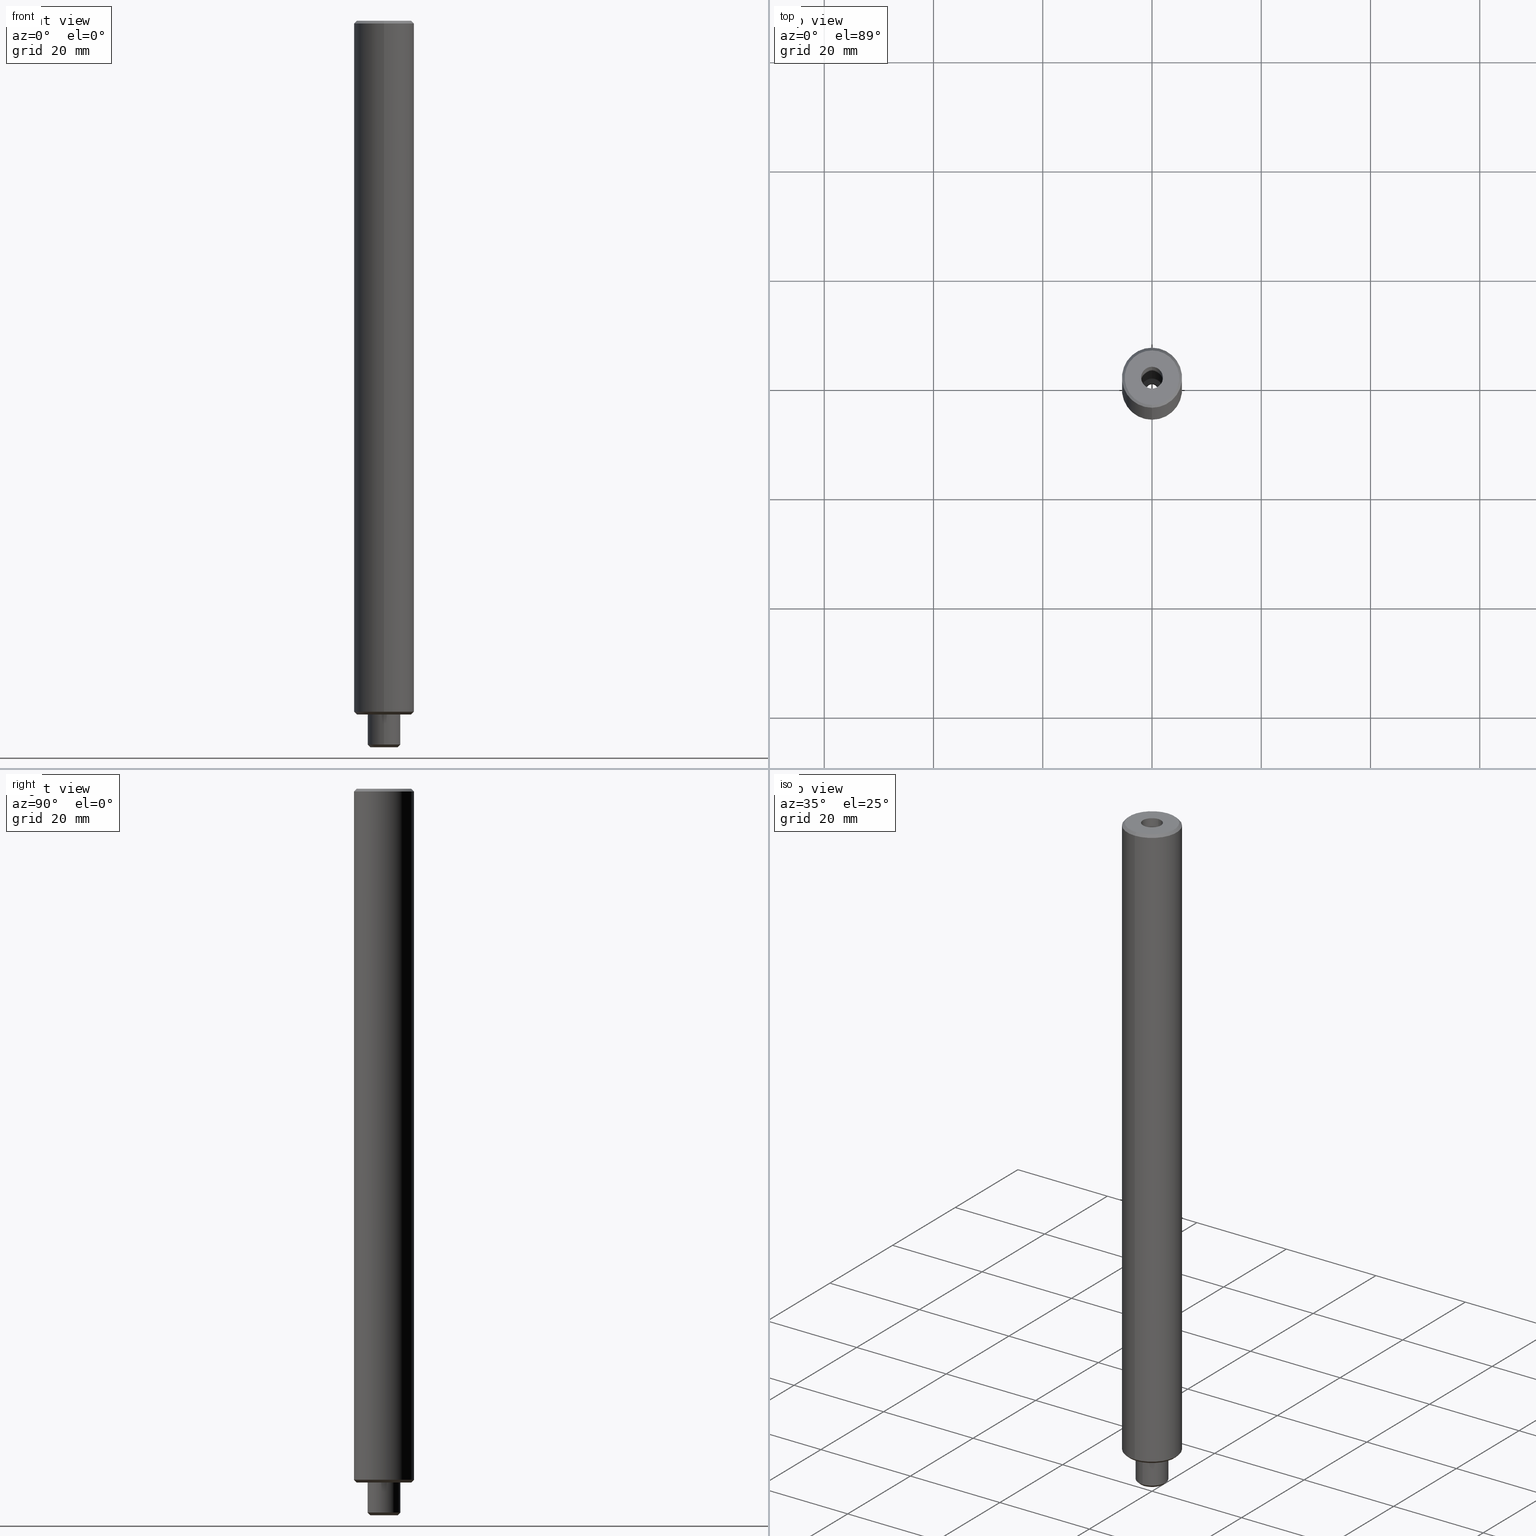
[diagram: canonical four-view strip — front | top / right | iso, engineering-drawing reading convention]
A machine part, canonical four-view strip (front | top / right | iso — engineering-drawing reading convention). The complete STEP part file that produces these views, byte-faithful:
ISO-10303-21;
HEADER;
FILE_DESCRIPTION(('no description'),'unknown implementation level');
FILE_NAME('29026E69-09CB-4364-9A47-0C9B39A260C6_export.stp','  ',('CIMSOURCE GmbH'),('CADClick - KiM GmbH - www.kimweb.de'),'unknown preprocess','ACIS','unknown authorization');
FILE_SCHEMA(('automotive_design'));
ENDSEC;
DATA;
#1=MECHANICAL_DESIGN_GEOMETRIC_PRESENTATION_REPRESENTATION(' ',(#10,#11,#12,#13,#14,#15,#16,#17,#18,#19,#20,#21,#22,#23,#24,#25,#26,#27,#28,#29,#30,#31,#32,#33,#34,#35,#36,#37,#38,#39,#40,#41,#42,#43,#44,#45,#46,#47,#48,#49,#50,#51,#52,#53,#54,#55,#56,#57,#58,#59,#60,#61,#62,#63,#64,#65,#66,#67,#68,#69,#70,#71,#72,#73,#74,#75,#76,#77,#78,#79,#80,#81,#82,#83,#84,#85,#86,#87,#88,#89),#6);
#2=PRODUCT_DEFINITION_CONTEXT('',#90,'design');
#3=APPLICATION_PROTOCOL_DEFINITION('INTERNATIONAL STANDARD','automotive_design',1994,#90);
#4=PRODUCT_CATEGORY_RELATIONSHIP('NONE','NONE',#91,#92);
#5=SHAPE_DEFINITION_REPRESENTATION(#93,#94);
#6= (GEOMETRIC_REPRESENTATION_CONTEXT(3)GLOBAL_UNCERTAINTY_ASSIGNED_CONTEXT((#97))GLOBAL_UNIT_ASSIGNED_CONTEXT((#99,#100,#101))REPRESENTATION_CONTEXT('NONE','WORKSPACE'));
#10=STYLED_ITEM('',(#103),#104);
#11=STYLED_ITEM('',(#105),#106);
#12=STYLED_ITEM('',(#107),#108);
#13=STYLED_ITEM('',(#109),#110);
#14=STYLED_ITEM('',(#111),#112);
#15=STYLED_ITEM('',(#113),#114);
#16=STYLED_ITEM('',(#115),#116);
#17=STYLED_ITEM('',(#117),#118);
#18=STYLED_ITEM('',(#119),#120);
#19=STYLED_ITEM('',(#121),#122);
#20=STYLED_ITEM('',(#123),#124);
#21=STYLED_ITEM('',(#125),#126);
#22=STYLED_ITEM('',(#127),#128);
#23=STYLED_ITEM('',(#129),#130);
#24=STYLED_ITEM('',(#131),#132);
#25=STYLED_ITEM('',(#133),#134);
#26=STYLED_ITEM('',(#135),#136);
#27=STYLED_ITEM('',(#137),#138);
#28=STYLED_ITEM('',(#139),#140);
#29=STYLED_ITEM('',(#141),#142);
#30=STYLED_ITEM('',(#143),#144);
#31=STYLED_ITEM('',(#145),#146);
#32=STYLED_ITEM('',(#147),#148);
#33=STYLED_ITEM('',(#149),#150);
#34=STYLED_ITEM('',(#151),#152);
#35=STYLED_ITEM('',(#153),#154);
#36=STYLED_ITEM('',(#155),#156);
#37=STYLED_ITEM('',(#157),#158);
#38=STYLED_ITEM('',(#159),#160);
#39=STYLED_ITEM('',(#161),#162);
#40=STYLED_ITEM('',(#163),#164);
#41=STYLED_ITEM('',(#165),#166);
#42=STYLED_ITEM('',(#167),#168);
#43=STYLED_ITEM('',(#169),#170);
#44=STYLED_ITEM('',(#171),#172);
#45=STYLED_ITEM('',(#173),#174);
#46=STYLED_ITEM('',(#175),#176);
#47=STYLED_ITEM('',(#177),#178);
#48=STYLED_ITEM('',(#179),#180);
#49=STYLED_ITEM('',(#181),#182);
#50=STYLED_ITEM('',(#183),#184);
#51=STYLED_ITEM('',(#185),#186);
#52=STYLED_ITEM('',(#187),#188);
#53=STYLED_ITEM('',(#189),#190);
#54=STYLED_ITEM('',(#191),#192);
#55=STYLED_ITEM('',(#193),#194);
#56=STYLED_ITEM('',(#195),#196);
#57=STYLED_ITEM('',(#197),#198);
#58=STYLED_ITEM('',(#199),#200);
#59=STYLED_ITEM('',(#201),#202);
#60=STYLED_ITEM('',(#203),#204);
#61=STYLED_ITEM('',(#205),#206);
#62=STYLED_ITEM('',(#207),#208);
#63=STYLED_ITEM('',(#209),#210);
#64=STYLED_ITEM('',(#211),#212);
#65=STYLED_ITEM('',(#213),#214);
#66=STYLED_ITEM('',(#215),#216);
#67=STYLED_ITEM('',(#217),#218);
#68=STYLED_ITEM('',(#219),#220);
#69=STYLED_ITEM('',(#221),#222);
#70=STYLED_ITEM('',(#223),#224);
#71=STYLED_ITEM('',(#225),#226);
#72=STYLED_ITEM('',(#227),#228);
#73=STYLED_ITEM('',(#229),#230);
#74=STYLED_ITEM('',(#231),#232);
#75=STYLED_ITEM('',(#233),#234);
#76=STYLED_ITEM('',(#235),#236);
#77=STYLED_ITEM('',(#237),#238);
#78=STYLED_ITEM('',(#239),#240);
#79=STYLED_ITEM('',(#241),#242);
#80=STYLED_ITEM('',(#243),#244);
#81=STYLED_ITEM('',(#245),#246);
#82=STYLED_ITEM('',(#247),#248);
#83=STYLED_ITEM('',(#249),#250);
#84=STYLED_ITEM('',(#251),#252);
#85=STYLED_ITEM('',(#253),#254);
#86=STYLED_ITEM('',(#255),#256);
#87=STYLED_ITEM('',(#257),#258);
#88=STYLED_ITEM('',(#259),#260);
#89=STYLED_ITEM('',(#261),#262);
#90=APPLICATION_CONTEXT(' ');
#91=PRODUCT_CATEGORY('part','NONE');
#92=PRODUCT_RELATED_PRODUCT_CATEGORY('detail',' ',(#263));
#93=PRODUCT_DEFINITION_SHAPE('NONE','NONE',#264);
#94=ADVANCED_BREP_SHAPE_REPRESENTATION('NONE',(#236,#265),#6);
#97=UNCERTAINTY_MEASURE_WITH_UNIT(LENGTH_MEASURE(1.0E-006),#99,'','');
#99= (CONVERSION_BASED_UNIT('MILLIMETRE',#268)LENGTH_UNIT()NAMED_UNIT(#271));
#100= (NAMED_UNIT(#273)PLANE_ANGLE_UNIT()SI_UNIT($,.RADIAN.));
#101= (NAMED_UNIT(#273)SOLID_ANGLE_UNIT()SI_UNIT($,.STERADIAN.));
#103=PRESENTATION_STYLE_ASSIGNMENT((#279));
#104=VERTEX_POINT('NONE',#280);
#105=PRESENTATION_STYLE_ASSIGNMENT((#281));
#106=EDGE_CURVE('NONE',#208,#130,#282,.T.);
#107=PRESENTATION_STYLE_ASSIGNMENT((#283));
#108=EDGE_CURVE('NONE',#132,#222,#284,.T.);
#109=PRESENTATION_STYLE_ASSIGNMENT((#285));
#110=ADVANCED_FACE('NONE',(#286),#287,.F.);
#111=PRESENTATION_STYLE_ASSIGNMENT((#288));
#112=VERTEX_POINT('NONE',#289);
#113=PRESENTATION_STYLE_ASSIGNMENT((#290));
#114=EDGE_CURVE('NONE',#246,#134,#291,.T.);
#115=PRESENTATION_STYLE_ASSIGNMENT((#292));
#116=EDGE_CURVE('NONE',#208,#168,#293,.T.);
#117=PRESENTATION_STYLE_ASSIGNMENT((#294));
#118=ADVANCED_FACE('NONE',(#295),#296,.T.);
#119=PRESENTATION_STYLE_ASSIGNMENT((#297));
#120=ADVANCED_FACE('NONE',(#298,#299),#300,.F.);
#121=PRESENTATION_STYLE_ASSIGNMENT((#301));
#122=ADVANCED_FACE('NONE',(#302),#303,.T.);
#123=PRESENTATION_STYLE_ASSIGNMENT((#304));
#124=EDGE_CURVE('NONE',#200,#168,#305,.T.);
#125=PRESENTATION_STYLE_ASSIGNMENT((#306));
#126=VERTEX_POINT('NONE',#307);
#127=PRESENTATION_STYLE_ASSIGNMENT((#308));
#128=VERTEX_POINT('NONE',#309);
#129=PRESENTATION_STYLE_ASSIGNMENT((#310));
#130=VERTEX_POINT('NONE',#311);
#131=PRESENTATION_STYLE_ASSIGNMENT((#312));
#132=VERTEX_POINT('NONE',#313);
#133=PRESENTATION_STYLE_ASSIGNMENT((#314));
#134=VERTEX_POINT('NONE',#315);
#135=PRESENTATION_STYLE_ASSIGNMENT((#316));
#136=ADVANCED_FACE('NONE',(#317),#318,.F.);
#137=PRESENTATION_STYLE_ASSIGNMENT((#319));
#138=EDGE_CURVE('NONE',#104,#242,#320,.T.);
#139=PRESENTATION_STYLE_ASSIGNMENT((#321));
#140=ADVANCED_FACE('NONE',(#322),#323,.T.);
#141=PRESENTATION_STYLE_ASSIGNMENT((#324));
#142=VERTEX_POINT('NONE',#325);
#143=PRESENTATION_STYLE_ASSIGNMENT((#326));
#144=ADVANCED_FACE('NONE',(#327),#328,.T.);
#145=PRESENTATION_STYLE_ASSIGNMENT((#329));
#146=VERTEX_POINT('NONE',#330);
#147=PRESENTATION_STYLE_ASSIGNMENT((#331));
#148=EDGE_CURVE('NONE',#200,#210,#332,.T.);
#149=PRESENTATION_STYLE_ASSIGNMENT((#333));
#150=EDGE_CURVE('NONE',#104,#134,#334,.T.);
#151=PRESENTATION_STYLE_ASSIGNMENT((#335));
#152=EDGE_CURVE('NONE',#246,#220,#336,.T.);
#153=PRESENTATION_STYLE_ASSIGNMENT((#337));
#154=VERTEX_POINT('NONE',#338);
#155=PRESENTATION_STYLE_ASSIGNMENT((#339));
#156=ADVANCED_FACE('NONE',(#340),#341,.T.);
#157=PRESENTATION_STYLE_ASSIGNMENT((#342));
#158=EDGE_CURVE('NONE',#112,#142,#343,.T.);
#159=PRESENTATION_STYLE_ASSIGNMENT((#344));
#160=EDGE_CURVE('NONE',#226,#154,#345,.T.);
#161=PRESENTATION_STYLE_ASSIGNMENT((#346));
#162=EDGE_CURVE('NONE',#134,#246,#347,.T.);
#163=PRESENTATION_STYLE_ASSIGNMENT((#348));
#164=ADVANCED_FACE('NONE',(#349),#350,.T.);
#165=PRESENTATION_STYLE_ASSIGNMENT((#351));
#166=ADVANCED_FACE('NONE',(#352,#353),#354,.F.);
#167=PRESENTATION_STYLE_ASSIGNMENT((#355));
#168=VERTEX_POINT('NONE',#356);
#169=PRESENTATION_STYLE_ASSIGNMENT((#357));
#170=EDGE_CURVE('NONE',#134,#146,#358,.T.);
#171=PRESENTATION_STYLE_ASSIGNMENT((#359));
#172=ADVANCED_FACE('NONE',(#360),#361,.F.);
#173=PRESENTATION_STYLE_ASSIGNMENT((#362));
#174=ADVANCED_FACE('NONE',(#363),#364,.T.);
#175=PRESENTATION_STYLE_ASSIGNMENT((#365));
#176=EDGE_CURVE('NONE',#132,#154,#366,.T.);
#177=PRESENTATION_STYLE_ASSIGNMENT((#367));
#178=EDGE_CURVE('NONE',#222,#132,#368,.T.);
#179=PRESENTATION_STYLE_ASSIGNMENT((#369));
#180=ADVANCED_FACE('NONE',(#370),#371,.F.);
#181=PRESENTATION_STYLE_ASSIGNMENT((#372));
#182=EDGE_CURVE('NONE',#112,#222,#373,.T.);
#183=PRESENTATION_STYLE_ASSIGNMENT((#374));
#184=ADVANCED_FACE('NONE',(#375),#376,.F.);
#185=PRESENTATION_STYLE_ASSIGNMENT((#377));
#186=EDGE_CURVE('NONE',#262,#130,#378,.T.);
#187=PRESENTATION_STYLE_ASSIGNMENT((#379));
#188=ADVANCED_FACE('NONE',(#380),#381,.T.);
#189=PRESENTATION_STYLE_ASSIGNMENT((#382));
#190=VERTEX_POINT('NONE',#383);
#191=PRESENTATION_STYLE_ASSIGNMENT((#384));
#192=EDGE_CURVE('NONE',#142,#112,#385,.T.);
#193=PRESENTATION_STYLE_ASSIGNMENT((#386));
#194=EDGE_CURVE('NONE',#128,#126,#387,.T.);
#195=PRESENTATION_STYLE_ASSIGNMENT((#388));
#196=EDGE_CURVE('NONE',#168,#208,#389,.T.);
#197=PRESENTATION_STYLE_ASSIGNMENT((#390));
#198=VERTEX_POINT('NONE',#391);
#199=PRESENTATION_STYLE_ASSIGNMENT((#392));
#200=VERTEX_POINT('NONE',#393);
#201=PRESENTATION_STYLE_ASSIGNMENT((#394));
#202=EDGE_CURVE('NONE',#142,#132,#395,.T.);
#203=PRESENTATION_STYLE_ASSIGNMENT((#396));
#204=ADVANCED_FACE('NONE',(#397),#398,.T.);
#205=PRESENTATION_STYLE_ASSIGNMENT((#399));
#206=EDGE_CURVE('NONE',#154,#190,#400,.T.);
#207=PRESENTATION_STYLE_ASSIGNMENT((#401));
#208=VERTEX_POINT('NONE',#402);
#209=PRESENTATION_STYLE_ASSIGNMENT((#403));
#210=VERTEX_POINT('NONE',#404);
#211=PRESENTATION_STYLE_ASSIGNMENT((#405));
#212=ADVANCED_FACE('NONE',(#406),#407,.T.);
#213=PRESENTATION_STYLE_ASSIGNMENT((#408));
#214=EDGE_CURVE('NONE',#190,#198,#409,.T.);
#215=PRESENTATION_STYLE_ASSIGNMENT((#410));
#216=EDGE_CURVE('NONE',#210,#200,#411,.T.);
#217=PRESENTATION_STYLE_ASSIGNMENT((#412));
#218=EDGE_CURVE('NONE',#210,#208,#413,.T.);
#219=PRESENTATION_STYLE_ASSIGNMENT((#414));
#220=VERTEX_POINT('NONE',#415);
#221=PRESENTATION_STYLE_ASSIGNMENT((#416));
#222=VERTEX_POINT('NONE',#417);
#223=PRESENTATION_STYLE_ASSIGNMENT((#418));
#224=EDGE_CURVE('NONE',#130,#262,#419,.T.);
#225=PRESENTATION_STYLE_ASSIGNMENT((#420));
#226=VERTEX_POINT('NONE',#421);
#227=PRESENTATION_STYLE_ASSIGNMENT((#422));
#228=EDGE_CURVE('NONE',#198,#190,#423,.T.);
#229=PRESENTATION_STYLE_ASSIGNMENT((#424));
#230=EDGE_CURVE('NONE',#220,#146,#425,.T.);
#231=PRESENTATION_STYLE_ASSIGNMENT((#426));
#232=EDGE_CURVE('NONE',#126,#128,#427,.T.);
#233=PRESENTATION_STYLE_ASSIGNMENT((#428));
#234=EDGE_CURVE('NONE',#242,#104,#429,.T.);
#235=PRESENTATION_STYLE_ASSIGNMENT((#430));
#236=MANIFOLD_SOLID_BREP('NONE',#431);
#237=PRESENTATION_STYLE_ASSIGNMENT((#432));
#238=EDGE_CURVE('NONE',#126,#220,#433,.T.);
#239=PRESENTATION_STYLE_ASSIGNMENT((#434));
#240=EDGE_CURVE('NONE',#128,#146,#435,.T.);
#241=PRESENTATION_STYLE_ASSIGNMENT((#436));
#242=VERTEX_POINT('NONE',#437);
#243=PRESENTATION_STYLE_ASSIGNMENT((#438));
#244=EDGE_CURVE('NONE',#222,#226,#439,.T.);
#245=PRESENTATION_STYLE_ASSIGNMENT((#440));
#246=VERTEX_POINT('NONE',#441);
#247=PRESENTATION_STYLE_ASSIGNMENT((#442));
#248=ADVANCED_FACE('NONE',(#443),#444,.F.);
#249=PRESENTATION_STYLE_ASSIGNMENT((#445));
#250=EDGE_CURVE('NONE',#146,#220,#446,.T.);
#251=PRESENTATION_STYLE_ASSIGNMENT((#447));
#252=EDGE_CURVE('NONE',#154,#226,#448,.T.);
#253=PRESENTATION_STYLE_ASSIGNMENT((#449));
#254=EDGE_CURVE('NONE',#226,#198,#450,.T.);
#255=PRESENTATION_STYLE_ASSIGNMENT((#451));
#256=EDGE_CURVE('NONE',#242,#246,#452,.T.);
#257=PRESENTATION_STYLE_ASSIGNMENT((#453));
#258=EDGE_CURVE('NONE',#168,#262,#454,.T.);
#259=PRESENTATION_STYLE_ASSIGNMENT((#455));
#260=ADVANCED_FACE('NONE',(#456,#457),#458,.F.);
#261=PRESENTATION_STYLE_ASSIGNMENT((#459));
#262=VERTEX_POINT('NONE',#460);
#263=PRODUCT('NONE','NONE','PART-NONE-DESC',(#461));
#264=PRODUCT_DEFINITION('NONE','NONE',#462,#2);
#265=AXIS2_PLACEMENT_3D('',#463,#464,#465);
#268=LENGTH_MEASURE_WITH_UNIT(LENGTH_MEASURE(1.0),#466);
#271=DIMENSIONAL_EXPONENTS(1.0,0.0,0.0,0.0,0.0,0.0,0.0);
#273=DIMENSIONAL_EXPONENTS(0.0,0.0,0.0,0.0,0.0,0.0,0.0);
#279=POINT_STYLE(' ',#467,POSITIVE_LENGTH_MEASURE(1.0E-006),#468);
#280=CARTESIAN_POINT('',(-6.42918335756748E-016,-5.0,0.0));
#281=CURVE_STYLE('',#469,POSITIVE_LENGTH_MEASURE(1.0E-006),#470);
#282=LINE('',#471,#472);
#283=CURVE_STYLE('',#473,POSITIVE_LENGTH_MEASURE(1.0E-006),#474);
#284=CIRCLE('',#475,1.1);
#285=SURFACE_STYLE_USAGE(.BOTH.,#476);
#286=FACE_OUTER_BOUND('',#477,.T.);
#287=CYLINDRICAL_SURFACE('',#478,1.1);
#288=POINT_STYLE(' ',#479,POSITIVE_LENGTH_MEASURE(1.0E-006),#480);
#289=CARTESIAN_POINT('',(0.0,1.1,-6.0));
#290=CURVE_STYLE('',#481,POSITIVE_LENGTH_MEASURE(1.0E-006),#482);
#291=CIRCLE('',#483,5.49999999999999);
#292=CURVE_STYLE('',#484,POSITIVE_LENGTH_MEASURE(1.0E-006),#485);
#293=CIRCLE('',#486,3.0);
#294=SURFACE_STYLE_USAGE(.BOTH.,#487);
#295=FACE_OUTER_BOUND('',#488,.T.);
#296=CYLINDRICAL_SURFACE('',#489,3.0);
#297=SURFACE_STYLE_USAGE(.BOTH.,#490);
#298=FACE_OUTER_BOUND('',#491,.T.);
#299=FACE_BOUND('',#492,.T.);
#300=PLANE('',#493);
#301=SURFACE_STYLE_USAGE(.BOTH.,#494);
#302=FACE_OUTER_BOUND('',#495,.T.);
#303=CONICAL_SURFACE('',#496,3.0,0.785398163397445);
#304=CURVE_STYLE('',#497,POSITIVE_LENGTH_MEASURE(1.0E-006),#498);
#305=LINE('',#499,#500);
#306=POINT_STYLE(' ',#501,POSITIVE_LENGTH_MEASURE(1.0E-006),#502);
#307=CARTESIAN_POINT('',(-6.42918335756747E-016,4.99999999999999,127.0));
#308=POINT_STYLE(' ',#503,POSITIVE_LENGTH_MEASURE(1.0E-006),#504);
#309=CARTESIAN_POINT('',(0.0,-4.99999999999999,127.0));
#310=POINT_STYLE(' ',#505,POSITIVE_LENGTH_MEASURE(1.0E-006),#506);
#311=CARTESIAN_POINT('',(0.0,3.0,0.0));
#312=POINT_STYLE(' ',#507,POSITIVE_LENGTH_MEASURE(1.0E-006),#508);
#313=CARTESIAN_POINT('',(-1.34706698920462E-016,-1.1,2.67242678916042));
#314=POINT_STYLE(' ',#509,POSITIVE_LENGTH_MEASURE(1.0E-006),#510);
#315=CARTESIAN_POINT('',(-6.73533494602306E-016,-5.49999999999999,0.499999999999987));
#316=SURFACE_STYLE_USAGE(.BOTH.,#511);
#317=FACE_OUTER_BOUND('',#512,.T.);
#318=CYLINDRICAL_SURFACE('',#513,2.0);
#319=CURVE_STYLE('',#514,POSITIVE_LENGTH_MEASURE(1.0E-006),#515);
#320=CIRCLE('',#516,5.0);
#321=SURFACE_STYLE_USAGE(.BOTH.,#517);
#322=FACE_OUTER_BOUND('',#518,.T.);
#323=CONICAL_SURFACE('',#519,3.0,0.785398163397445);
#324=POINT_STYLE(' ',#520,POSITIVE_LENGTH_MEASURE(1.0E-006),#521);
#325=CARTESIAN_POINT('',(-1.34706698920462E-016,-1.1,-6.0));
#326=SURFACE_STYLE_USAGE(.BOTH.,#522);
#327=FACE_OUTER_BOUND('',#523,.T.);
#328=CONICAL_SURFACE('',#524,4.99999999999999,0.785398163397449);
#329=POINT_STYLE(' ',#525,POSITIVE_LENGTH_MEASURE(1.0E-006),#526);
#330=CARTESIAN_POINT('',(-6.73533494602306E-016,-5.49999999999999,126.5));
#331=CURVE_STYLE('',#527,POSITIVE_LENGTH_MEASURE(1.0E-006),#528);
#332=CIRCLE('',#529,2.50000000000001);
#333=CURVE_STYLE('',#530,POSITIVE_LENGTH_MEASURE(1.0E-006),#531);
#334=LINE('',#532,#533);
#335=CURVE_STYLE('',#534,POSITIVE_LENGTH_MEASURE(1.0E-006),#535);
#336=LINE('',#536,#537);
#337=POINT_STYLE(' ',#538,POSITIVE_LENGTH_MEASURE(1.0E-006),#539);
#338=CARTESIAN_POINT('',(-2.44921270764475E-016,-2.0,3.0));
#339=SURFACE_STYLE_USAGE(.BOTH.,#540);
#340=FACE_OUTER_BOUND('',#541,.T.);
#341=CONICAL_SURFACE('',#542,5.49999999999999,0.785398163397449);
#342=CURVE_STYLE('',#543,POSITIVE_LENGTH_MEASURE(1.0E-006),#544);
#343=CIRCLE('',#545,1.1);
#344=CURVE_STYLE('',#546,POSITIVE_LENGTH_MEASURE(1.0E-006),#547);
#345=CIRCLE('',#548,2.0);
#346=CURVE_STYLE('',#549,POSITIVE_LENGTH_MEASURE(1.0E-006),#550);
#347=CIRCLE('',#551,5.49999999999999);
#348=SURFACE_STYLE_USAGE(.BOTH.,#552);
#349=FACE_OUTER_BOUND('',#553,.T.);
#350=CYLINDRICAL_SURFACE('',#554,5.49999999999999);
#351=SURFACE_STYLE_USAGE(.BOTH.,#555);
#352=FACE_OUTER_BOUND('',#556,.T.);
#353=FACE_BOUND('',#557,.T.);
#354=PLANE('',#558);
#355=POINT_STYLE(' ',#559,POSITIVE_LENGTH_MEASURE(1.0E-006),#560);
#356=CARTESIAN_POINT('',(-3.67381906146713E-016,-3.0,-5.50000000000001));
#357=CURVE_STYLE('',#561,POSITIVE_LENGTH_MEASURE(1.0E-006),#562);
#358=LINE('',#563,#564);
#359=SURFACE_STYLE_USAGE(.BOTH.,#565);
#360=FACE_OUTER_BOUND('',#566,.T.);
#361=CYLINDRICAL_SURFACE('',#567,2.0);
#362=SURFACE_STYLE_USAGE(.BOTH.,#568);
#363=FACE_OUTER_BOUND('',#569,.T.);
#364=CYLINDRICAL_SURFACE('',#570,3.0);
#365=CURVE_STYLE('',#571,POSITIVE_LENGTH_MEASURE(1.0E-006),#572);
#366=LINE('',#573,#574);
#367=CURVE_STYLE('',#575,POSITIVE_LENGTH_MEASURE(1.0E-006),#576);
#368=CIRCLE('',#577,1.1);
#369=SURFACE_STYLE_USAGE(.BOTH.,#578);
#370=FACE_OUTER_BOUND('',#579,.T.);
#371=CYLINDRICAL_SURFACE('',#580,1.1);
#372=CURVE_STYLE('',#581,POSITIVE_LENGTH_MEASURE(1.0E-006),#582);
#373=LINE('',#583,#584);
#374=SURFACE_STYLE_USAGE(.BOTH.,#585);
#375=FACE_OUTER_BOUND('',#586,.T.);
#376=CONICAL_SURFACE('',#587,2.0,1.22173047639603);
#377=CURVE_STYLE('',#588,POSITIVE_LENGTH_MEASURE(1.0E-006),#589);
#378=CIRCLE('',#590,3.0);
#379=SURFACE_STYLE_USAGE(.BOTH.,#591);
#380=FACE_OUTER_BOUND('',#592,.T.);
#381=CONICAL_SURFACE('',#593,4.99999999999999,0.785398163397449);
#382=POINT_STYLE(' ',#594,POSITIVE_LENGTH_MEASURE(1.0E-006),#595);
#383=CARTESIAN_POINT('',(-2.44921270764475E-016,-2.0,127.0));
#384=CURVE_STYLE('',#596,POSITIVE_LENGTH_MEASURE(1.0E-006),#597);
#385=CIRCLE('',#598,1.1);
#386=CURVE_STYLE('',#599,POSITIVE_LENGTH_MEASURE(1.0E-006),#600);
#387=CIRCLE('',#601,4.99999999999999);
#388=CURVE_STYLE('',#602,POSITIVE_LENGTH_MEASURE(1.0E-006),#603);
#389=CIRCLE('',#604,3.0);
#390=POINT_STYLE(' ',#605,POSITIVE_LENGTH_MEASURE(1.0E-006),#606);
#391=CARTESIAN_POINT('',(0.0,2.0,127.0));
#392=POINT_STYLE(' ',#607,POSITIVE_LENGTH_MEASURE(1.0E-006),#608);
#393=CARTESIAN_POINT('',(-3.36766747301155E-016,-2.50000000000001,-6.0));
#394=CURVE_STYLE('',#609,POSITIVE_LENGTH_MEASURE(1.0E-006),#610);
#395=LINE('',#611,#612);
#396=SURFACE_STYLE_USAGE(.BOTH.,#613);
#397=FACE_OUTER_BOUND('',#614,.T.);
#398=CYLINDRICAL_SURFACE('',#615,5.49999999999999);
#399=CURVE_STYLE('',#616,POSITIVE_LENGTH_MEASURE(1.0E-006),#617);
#400=LINE('',#618,#619);
#401=POINT_STYLE(' ',#620,POSITIVE_LENGTH_MEASURE(1.0E-006),#621);
#402=CARTESIAN_POINT('',(0.0,3.0,-5.50000000000001));
#403=POINT_STYLE(' ',#622,POSITIVE_LENGTH_MEASURE(1.0E-006),#623);
#404=CARTESIAN_POINT('',(0.0,2.50000000000001,-6.0));
#405=SURFACE_STYLE_USAGE(.BOTH.,#624);
#406=FACE_OUTER_BOUND('',#625,.T.);
#407=CONICAL_SURFACE('',#626,5.49999999999999,0.785398163397449);
#408=CURVE_STYLE('',#627,POSITIVE_LENGTH_MEASURE(1.0E-006),#628);
#409=CIRCLE('',#629,2.0);
#410=CURVE_STYLE('',#630,POSITIVE_LENGTH_MEASURE(1.0E-006),#631);
#411=CIRCLE('',#632,2.50000000000001);
#412=CURVE_STYLE('',#633,POSITIVE_LENGTH_MEASURE(1.0E-006),#634);
#413=LINE('',#635,#636);
#414=POINT_STYLE(' ',#637,POSITIVE_LENGTH_MEASURE(1.0E-006),#638);
#415=CARTESIAN_POINT('',(0.0,5.49999999999999,126.5));
#416=POINT_STYLE(' ',#639,POSITIVE_LENGTH_MEASURE(1.0E-006),#640);
#417=CARTESIAN_POINT('',(0.0,1.1,2.67242678916042));
#418=CURVE_STYLE('',#641,POSITIVE_LENGTH_MEASURE(1.0E-006),#642);
#419=CIRCLE('',#643,3.0);
#420=POINT_STYLE(' ',#644,POSITIVE_LENGTH_MEASURE(1.0E-006),#645);
#421=CARTESIAN_POINT('',(0.0,2.0,3.0));
#422=CURVE_STYLE('',#646,POSITIVE_LENGTH_MEASURE(1.0E-006),#647);
#423=CIRCLE('',#648,2.0);
#424=CURVE_STYLE('',#649,POSITIVE_LENGTH_MEASURE(1.0E-006),#650);
#425=CIRCLE('',#651,5.49999999999999);
#426=CURVE_STYLE('',#652,POSITIVE_LENGTH_MEASURE(1.0E-006),#653);
#427=CIRCLE('',#654,4.99999999999999);
#428=CURVE_STYLE('',#655,POSITIVE_LENGTH_MEASURE(1.0E-006),#656);
#429=CIRCLE('',#657,5.0);
#430=SURFACE_STYLE_USAGE(.BOTH.,#658);
#431=CLOSED_SHELL('',(#122,#144,#156,#174,#164,#172,#248,#180,#120,#110,#184,#136,#166,#204,#260,#118,#212,#188,#140));
#432=CURVE_STYLE('',#659,POSITIVE_LENGTH_MEASURE(1.0E-006),#660);
#433=LINE('',#661,#662);
#434=CURVE_STYLE('',#663,POSITIVE_LENGTH_MEASURE(1.0E-006),#664);
#435=LINE('',#665,#666);
#436=POINT_STYLE(' ',#667,POSITIVE_LENGTH_MEASURE(1.0E-006),#668);
#437=CARTESIAN_POINT('',(0.0,5.0,0.0));
#438=CURVE_STYLE('',#669,POSITIVE_LENGTH_MEASURE(1.0E-006),#670);
#439=LINE('',#671,#672);
#440=POINT_STYLE(' ',#673,POSITIVE_LENGTH_MEASURE(1.0E-006),#674);
#441=CARTESIAN_POINT('',(0.0,5.49999999999999,0.499999999999987));
#442=SURFACE_STYLE_USAGE(.BOTH.,#675);
#443=FACE_OUTER_BOUND('',#676,.T.);
#444=CONICAL_SURFACE('',#677,2.0,1.22173047639603);
#445=CURVE_STYLE('',#678,POSITIVE_LENGTH_MEASURE(1.0E-006),#679);
#446=CIRCLE('',#680,5.49999999999999);
#447=CURVE_STYLE('',#681,POSITIVE_LENGTH_MEASURE(1.0E-006),#682);
#448=CIRCLE('',#683,2.0);
#449=CURVE_STYLE('',#684,POSITIVE_LENGTH_MEASURE(1.0E-006),#685);
#450=LINE('',#686,#687);
#451=CURVE_STYLE('',#688,POSITIVE_LENGTH_MEASURE(1.0E-006),#689);
#452=LINE('',#690,#691);
#453=CURVE_STYLE('',#692,POSITIVE_LENGTH_MEASURE(1.0E-006),#693);
#454=LINE('',#694,#695);
#455=SURFACE_STYLE_USAGE(.BOTH.,#696);
#456=FACE_OUTER_BOUND('',#697,.T.);
#457=FACE_BOUND('',#698,.T.);
#458=PLANE('',#699);
#459=POINT_STYLE(' ',#700,POSITIVE_LENGTH_MEASURE(1.0E-006),#701);
#460=CARTESIAN_POINT('',(-3.67381906146713E-016,-3.0,0.0));
#461=PRODUCT_CONTEXT('',#90,'mechanical');
#462=PRODUCT_DEFINITION_FORMATION_WITH_SPECIFIED_SOURCE(' ','NONE',#263,.NOT_KNOWN.);
#463=CARTESIAN_POINT('',(0.0,0.0,0.0));
#464=DIRECTION('',(0.0,0.0,1.0));
#465=DIRECTION('',(1.0,0.0,0.0));
#466= (NAMED_UNIT(#271)LENGTH_UNIT()SI_UNIT(.MILLI.,.METRE.));
#467=PRE_DEFINED_MARKER('');
#468=COLOUR_RGB('', 0.5, 0.5, 0.5);
#469=DRAUGHTING_PRE_DEFINED_CURVE_FONT('continuous');
#470=COLOUR_RGB('', 0.5, 0.5, 0.5);
#471=CARTESIAN_POINT('',(0.0,3.0,44.3839792060492));
#472=VECTOR('',#703,1000.0);
#473=DRAUGHTING_PRE_DEFINED_CURVE_FONT('continuous');
#474=COLOUR_RGB('', 0.5, 0.5, 0.5);
#475=AXIS2_PLACEMENT_3D('',#704,#705,#706);
#476=SURFACE_SIDE_STYLE('',(#707));
#477=EDGE_LOOP('',(#708,#709,#710,#711));
#478=AXIS2_PLACEMENT_3D('',#712,#713,#714);
#479=PRE_DEFINED_MARKER('');
#480=COLOUR_RGB('', 0.5, 0.5, 0.5);
#481=DRAUGHTING_PRE_DEFINED_CURVE_FONT('continuous');
#482=COLOUR_RGB('', 0.5, 0.5, 0.5);
#483=AXIS2_PLACEMENT_3D('',#715,#716,#717);
#484=DRAUGHTING_PRE_DEFINED_CURVE_FONT('continuous');
#485=COLOUR_RGB('', 0.5, 0.5, 0.5);
#486=AXIS2_PLACEMENT_3D('',#718,#719,#720);
#487=SURFACE_SIDE_STYLE('',(#721));
#488=EDGE_LOOP('',(#722,#723,#724,#725));
#489=AXIS2_PLACEMENT_3D('',#726,#727,#728);
#490=SURFACE_SIDE_STYLE('',(#729));
#491=EDGE_LOOP('',(#730,#731));
#492=EDGE_LOOP('',(#732,#733));
#493=AXIS2_PLACEMENT_3D('',#734,#735,#736);
#494=SURFACE_SIDE_STYLE('',(#737));
#495=EDGE_LOOP('',(#738,#739,#740,#741));
#496=AXIS2_PLACEMENT_3D('',#742,#743,#744);
#497=DRAUGHTING_PRE_DEFINED_CURVE_FONT('continuous');
#498=COLOUR_RGB('', 0.5, 0.5, 0.5);
#499=CARTESIAN_POINT('',(-3.67381906146713E-016,-3.0,-5.50000000000001));
#500=VECTOR('',#745,1000.0);
#501=PRE_DEFINED_MARKER('');
#502=COLOUR_RGB('', 0.5, 0.5, 0.5);
#503=PRE_DEFINED_MARKER('');
#504=COLOUR_RGB('', 0.5, 0.5, 0.5);
#505=PRE_DEFINED_MARKER('');
#506=COLOUR_RGB('', 0.5, 0.5, 0.5);
#507=PRE_DEFINED_MARKER('');
#508=COLOUR_RGB('', 0.5, 0.5, 0.5);
#509=PRE_DEFINED_MARKER('');
#510=COLOUR_RGB('', 0.5, 0.5, 0.5);
#511=SURFACE_SIDE_STYLE('',(#746));
#512=EDGE_LOOP('',(#747,#748,#749,#750));
#513=AXIS2_PLACEMENT_3D('',#751,#752,#753);
#514=DRAUGHTING_PRE_DEFINED_CURVE_FONT('continuous');
#515=COLOUR_RGB('', 0.5, 0.5, 0.5);
#516=AXIS2_PLACEMENT_3D('',#754,#755,#756);
#517=SURFACE_SIDE_STYLE('',(#757));
#518=EDGE_LOOP('',(#758,#759,#760,#761));
#519=AXIS2_PLACEMENT_3D('',#762,#763,#764);
#520=PRE_DEFINED_MARKER('');
#521=COLOUR_RGB('', 0.5, 0.5, 0.5);
#522=SURFACE_SIDE_STYLE('',(#765));
#523=EDGE_LOOP('',(#766,#767,#768,#769));
#524=AXIS2_PLACEMENT_3D('',#770,#771,#772);
#525=PRE_DEFINED_MARKER('');
#526=COLOUR_RGB('', 0.5, 0.5, 0.5);
#527=DRAUGHTING_PRE_DEFINED_CURVE_FONT('continuous');
#528=COLOUR_RGB('', 0.5, 0.5, 0.5);
#529=AXIS2_PLACEMENT_3D('',#773,#774,#775);
#530=DRAUGHTING_PRE_DEFINED_CURVE_FONT('continuous');
#531=COLOUR_RGB('', 0.5, 0.5, 0.5);
#532=CARTESIAN_POINT('',(-6.73533494602306E-016,-5.49999999999999,0.499999999999987));
#533=VECTOR('',#776,1000.0);
#534=DRAUGHTING_PRE_DEFINED_CURVE_FONT('continuous');
#535=COLOUR_RGB('', 0.5, 0.5, 0.5);
#536=CARTESIAN_POINT('',(0.0,5.49999999999999,44.3839792060492));
#537=VECTOR('',#777,1000.0);
#538=PRE_DEFINED_MARKER('');
#539=COLOUR_RGB('', 0.5, 0.5, 0.5);
#540=SURFACE_SIDE_STYLE('',(#778));
#541=EDGE_LOOP('',(#779,#780,#781,#782));
#542=AXIS2_PLACEMENT_3D('',#783,#784,#785);
#543=DRAUGHTING_PRE_DEFINED_CURVE_FONT('continuous');
#544=COLOUR_RGB('', 0.5, 0.5, 0.5);
#545=AXIS2_PLACEMENT_3D('',#786,#787,#788);
#546=DRAUGHTING_PRE_DEFINED_CURVE_FONT('continuous');
#547=COLOUR_RGB('', 0.5, 0.5, 0.5);
#548=AXIS2_PLACEMENT_3D('',#789,#790,#791);
#549=DRAUGHTING_PRE_DEFINED_CURVE_FONT('continuous');
#550=COLOUR_RGB('', 0.5, 0.5, 0.5);
#551=AXIS2_PLACEMENT_3D('',#792,#793,#794);
#552=SURFACE_SIDE_STYLE('',(#795));
#553=EDGE_LOOP('',(#796,#797,#798,#799));
#554=AXIS2_PLACEMENT_3D('',#800,#801,#802);
#555=SURFACE_SIDE_STYLE('',(#803));
#556=EDGE_LOOP('',(#804,#805));
#557=EDGE_LOOP('',(#806,#807));
#558=AXIS2_PLACEMENT_3D('',#808,#809,#810);
#559=PRE_DEFINED_MARKER('');
#560=COLOUR_RGB('', 0.5, 0.5, 0.5);
#561=DRAUGHTING_PRE_DEFINED_CURVE_FONT('continuous');
#562=COLOUR_RGB('', 0.5, 0.5, 0.5);
#563=CARTESIAN_POINT('',(-6.73533494602306E-016,-5.49999999999999,44.3839792060492));
#564=VECTOR('',#811,1000.0);
#565=SURFACE_SIDE_STYLE('',(#812));
#566=EDGE_LOOP('',(#813,#814,#815,#816));
#567=AXIS2_PLACEMENT_3D('',#817,#818,#819);
#568=SURFACE_SIDE_STYLE('',(#820));
#569=EDGE_LOOP('',(#821,#822,#823,#824));
#570=AXIS2_PLACEMENT_3D('',#825,#826,#827);
#571=DRAUGHTING_PRE_DEFINED_CURVE_FONT('continuous');
#572=COLOUR_RGB('', 0.5, 0.5, 0.5);
#573=CARTESIAN_POINT('',(-2.44921270764475E-016,-2.0,3.0));
#574=VECTOR('',#828,1000.0);
#575=DRAUGHTING_PRE_DEFINED_CURVE_FONT('continuous');
#576=COLOUR_RGB('', 0.5, 0.5, 0.5);
#577=AXIS2_PLACEMENT_3D('',#829,#830,#831);
#578=SURFACE_SIDE_STYLE('',(#832));
#579=EDGE_LOOP('',(#833,#834,#835,#836));
#580=AXIS2_PLACEMENT_3D('',#837,#838,#839);
#581=DRAUGHTING_PRE_DEFINED_CURVE_FONT('continuous');
#582=COLOUR_RGB('', 0.5, 0.5, 0.5);
#583=CARTESIAN_POINT('',(0.0,1.1,44.3839792060492));
#584=VECTOR('',#840,1000.0);
#585=SURFACE_SIDE_STYLE('',(#841));
#586=EDGE_LOOP('',(#842,#843,#844,#845));
#587=AXIS2_PLACEMENT_3D('',#846,#847,#848);
#588=DRAUGHTING_PRE_DEFINED_CURVE_FONT('continuous');
#589=COLOUR_RGB('', 0.5, 0.5, 0.5);
#590=AXIS2_PLACEMENT_3D('',#849,#850,#851);
#591=SURFACE_SIDE_STYLE('',(#852));
#592=EDGE_LOOP('',(#853,#854,#855,#856));
#593=AXIS2_PLACEMENT_3D('',#857,#858,#859);
#594=PRE_DEFINED_MARKER('');
#595=COLOUR_RGB('', 0.5, 0.5, 0.5);
#596=DRAUGHTING_PRE_DEFINED_CURVE_FONT('continuous');
#597=COLOUR_RGB('', 0.5, 0.5, 0.5);
#598=AXIS2_PLACEMENT_3D('',#860,#861,#862);
#599=DRAUGHTING_PRE_DEFINED_CURVE_FONT('continuous');
#600=COLOUR_RGB('', 0.5, 0.5, 0.5);
#601=AXIS2_PLACEMENT_3D('',#863,#864,#865);
#602=DRAUGHTING_PRE_DEFINED_CURVE_FONT('continuous');
#603=COLOUR_RGB('', 0.5, 0.5, 0.5);
#604=AXIS2_PLACEMENT_3D('',#866,#867,#868);
#605=PRE_DEFINED_MARKER('');
#606=COLOUR_RGB('', 0.5, 0.5, 0.5);
#607=PRE_DEFINED_MARKER('');
#608=COLOUR_RGB('', 0.5, 0.5, 0.5);
#609=DRAUGHTING_PRE_DEFINED_CURVE_FONT('continuous');
#610=COLOUR_RGB('', 0.5, 0.5, 0.5);
#611=CARTESIAN_POINT('',(-1.34706698920462E-016,-1.1,44.3839792060492));
#612=VECTOR('',#869,1000.0);
#613=SURFACE_SIDE_STYLE('',(#870));
#614=EDGE_LOOP('',(#871,#872,#873,#874));
#615=AXIS2_PLACEMENT_3D('',#875,#876,#877);
#616=DRAUGHTING_PRE_DEFINED_CURVE_FONT('continuous');
#617=COLOUR_RGB('', 0.5, 0.5, 0.5);
#618=CARTESIAN_POINT('',(-2.44921270764475E-016,-2.0,44.3839792060492));
#619=VECTOR('',#878,1000.0);
#620=PRE_DEFINED_MARKER('');
#621=COLOUR_RGB('', 0.5, 0.5, 0.5);
#622=PRE_DEFINED_MARKER('');
#623=COLOUR_RGB('', 0.5, 0.5, 0.5);
#624=SURFACE_SIDE_STYLE('',(#879));
#625=EDGE_LOOP('',(#880,#881,#882,#883));
#626=AXIS2_PLACEMENT_3D('',#884,#885,#886);
#627=DRAUGHTING_PRE_DEFINED_CURVE_FONT('continuous');
#628=COLOUR_RGB('', 0.5, 0.5, 0.5);
#629=AXIS2_PLACEMENT_3D('',#887,#888,#889);
#630=DRAUGHTING_PRE_DEFINED_CURVE_FONT('continuous');
#631=COLOUR_RGB('', 0.5, 0.5, 0.5);
#632=AXIS2_PLACEMENT_3D('',#890,#891,#892);
#633=DRAUGHTING_PRE_DEFINED_CURVE_FONT('continuous');
#634=COLOUR_RGB('', 0.5, 0.5, 0.5);
#635=CARTESIAN_POINT('',(0.0,3.0,-5.50000000000001));
#636=VECTOR('',#893,1000.0);
#637=PRE_DEFINED_MARKER('');
#638=COLOUR_RGB('', 0.5, 0.5, 0.5);
#639=PRE_DEFINED_MARKER('');
#640=COLOUR_RGB('', 0.5, 0.5, 0.5);
#641=DRAUGHTING_PRE_DEFINED_CURVE_FONT('continuous');
#642=COLOUR_RGB('', 0.5, 0.5, 0.5);
#643=AXIS2_PLACEMENT_3D('',#894,#895,#896);
#644=PRE_DEFINED_MARKER('');
#645=COLOUR_RGB('', 0.5, 0.5, 0.5);
#646=DRAUGHTING_PRE_DEFINED_CURVE_FONT('continuous');
#647=COLOUR_RGB('', 0.5, 0.5, 0.5);
#648=AXIS2_PLACEMENT_3D('',#897,#898,#899);
#649=DRAUGHTING_PRE_DEFINED_CURVE_FONT('continuous');
#650=COLOUR_RGB('', 0.5, 0.5, 0.5);
#651=AXIS2_PLACEMENT_3D('',#900,#901,#902);
#652=DRAUGHTING_PRE_DEFINED_CURVE_FONT('continuous');
#653=COLOUR_RGB('', 0.5, 0.5, 0.5);
#654=AXIS2_PLACEMENT_3D('',#903,#904,#905);
#655=DRAUGHTING_PRE_DEFINED_CURVE_FONT('continuous');
#656=COLOUR_RGB('', 0.5, 0.5, 0.5);
#657=AXIS2_PLACEMENT_3D('',#906,#907,#908);
#658=SURFACE_SIDE_STYLE('',(#909));
#659=DRAUGHTING_PRE_DEFINED_CURVE_FONT('continuous');
#660=COLOUR_RGB('', 0.5, 0.5, 0.5);
#661=CARTESIAN_POINT('',(-6.12303176911187E-016,4.99999999999999,127.0));
#662=VECTOR('',#910,1000.0);
#663=DRAUGHTING_PRE_DEFINED_CURVE_FONT('continuous');
#664=COLOUR_RGB('', 0.5, 0.5, 0.5);
#665=CARTESIAN_POINT('',(0.0,-4.99999999999999,127.0));
#666=VECTOR('',#911,1000.0);
#667=PRE_DEFINED_MARKER('');
#668=COLOUR_RGB('', 0.5, 0.5, 0.5);
#669=DRAUGHTING_PRE_DEFINED_CURVE_FONT('continuous');
#670=COLOUR_RGB('', 0.5, 0.5, 0.5);
#671=CARTESIAN_POINT('',(0.0,2.0,3.0));
#672=VECTOR('',#912,1000.0);
#673=PRE_DEFINED_MARKER('');
#674=COLOUR_RGB('', 0.5, 0.5, 0.5);
#675=SURFACE_SIDE_STYLE('',(#913));
#676=EDGE_LOOP('',(#914,#915,#916,#917));
#677=AXIS2_PLACEMENT_3D('',#918,#919,#920);
#678=DRAUGHTING_PRE_DEFINED_CURVE_FONT('continuous');
#679=COLOUR_RGB('', 0.5, 0.5, 0.5);
#680=AXIS2_PLACEMENT_3D('',#921,#922,#923);
#681=DRAUGHTING_PRE_DEFINED_CURVE_FONT('continuous');
#682=COLOUR_RGB('', 0.5, 0.5, 0.5);
#683=AXIS2_PLACEMENT_3D('',#924,#925,#926);
#684=DRAUGHTING_PRE_DEFINED_CURVE_FONT('continuous');
#685=COLOUR_RGB('', 0.5, 0.5, 0.5);
#686=CARTESIAN_POINT('',(0.0,2.0,44.3839792060492));
#687=VECTOR('',#927,1000.0);
#688=DRAUGHTING_PRE_DEFINED_CURVE_FONT('continuous');
#689=COLOUR_RGB('', 0.5, 0.5, 0.5);
#690=CARTESIAN_POINT('',(0.0,5.49999999999999,0.499999999999987));
#691=VECTOR('',#928,1000.0);
#692=DRAUGHTING_PRE_DEFINED_CURVE_FONT('continuous');
#693=COLOUR_RGB('', 0.5, 0.5, 0.5);
#694=CARTESIAN_POINT('',(-3.67381906146713E-016,-3.0,44.3839792060492));
#695=VECTOR('',#929,1000.0);
#696=SURFACE_SIDE_STYLE('',(#930));
#697=EDGE_LOOP('',(#931,#932));
#698=EDGE_LOOP('',(#933,#934));
#699=AXIS2_PLACEMENT_3D('',#935,#936,#937);
#700=PRE_DEFINED_MARKER('');
#701=COLOUR_RGB('', 0.5, 0.5, 0.5);
#703=DIRECTION('',(0.0,-0.0,1.0));
#704=CARTESIAN_POINT('',(0.0,0.0,2.67242678916042));
#705=DIRECTION('',(0.0,-0.0,1.0));
#706=DIRECTION('',(0.0,1.0,0.0));
#707=SURFACE_STYLE_FILL_AREA(#938);
#708=ORIENTED_EDGE('',*,*,#202,.F.);
#709=ORIENTED_EDGE('',*,*,#158,.F.);
#710=ORIENTED_EDGE('',*,*,#182,.T.);
#711=ORIENTED_EDGE('',*,*,#178,.T.);
#712=CARTESIAN_POINT('',(0.0,0.0,44.3839792060492));
#713=DIRECTION('',(-0.0,-0.0,1.0));
#714=DIRECTION('',(0.0,1.0,0.0));
#715=CARTESIAN_POINT('',(0.0,0.0,0.499999999999987));
#716=DIRECTION('',(0.0,-0.0,1.0));
#717=DIRECTION('',(0.0,1.0,0.0));
#718=CARTESIAN_POINT('',(0.0,0.0,-5.50000000000001));
#719=DIRECTION('',(0.0,-0.0,1.0));
#720=DIRECTION('',(0.0,1.0,0.0));
#721=SURFACE_STYLE_FILL_AREA(#939);
#722=ORIENTED_EDGE('',*,*,#258,.F.);
#723=ORIENTED_EDGE('',*,*,#196,.T.);
#724=ORIENTED_EDGE('',*,*,#106,.T.);
#725=ORIENTED_EDGE('',*,*,#186,.F.);
#726=CARTESIAN_POINT('',(0.0,0.0,44.3839792060492));
#727=DIRECTION('',(-0.0,-0.0,1.0));
#728=DIRECTION('',(0.0,1.0,0.0));
#729=SURFACE_STYLE_FILL_AREA(#940);
#730=ORIENTED_EDGE('',*,*,#216,.T.);
#731=ORIENTED_EDGE('',*,*,#148,.T.);
#732=ORIENTED_EDGE('',*,*,#158,.T.);
#733=ORIENTED_EDGE('',*,*,#192,.T.);
#734=CARTESIAN_POINT('',(-1.1,0.0,-6.0));
#735=DIRECTION('',(-0.0,0.0,1.0));
#736=DIRECTION('',(0.0,1.0,0.0));
#737=SURFACE_STYLE_FILL_AREA(#941);
#738=ORIENTED_EDGE('',*,*,#148,.F.);
#739=ORIENTED_EDGE('',*,*,#124,.T.);
#740=ORIENTED_EDGE('',*,*,#116,.F.);
#741=ORIENTED_EDGE('',*,*,#218,.F.);
#742=CARTESIAN_POINT('',(0.0,0.0,-5.50000000000001));
#743=DIRECTION('',(-0.0,-0.0,1.0));
#744=DIRECTION('',(0.0,1.0,0.0));
#745=DIRECTION('',(-8.65927457071933E-017,-0.707106781186545,0.70710678118655));
#746=SURFACE_STYLE_FILL_AREA(#942);
#747=ORIENTED_EDGE('',*,*,#206,.F.);
#748=ORIENTED_EDGE('',*,*,#160,.F.);
#749=ORIENTED_EDGE('',*,*,#254,.T.);
#750=ORIENTED_EDGE('',*,*,#228,.T.);
#751=CARTESIAN_POINT('',(0.0,0.0,44.3839792060492));
#752=DIRECTION('',(-0.0,-0.0,1.0));
#753=DIRECTION('',(0.0,1.0,0.0));
#754=CARTESIAN_POINT('',(0.0,0.0,0.0));
#755=DIRECTION('',(0.0,0.0,-1.0));
#756=DIRECTION('',(0.0,1.0,0.0));
#757=SURFACE_STYLE_FILL_AREA(#943);
#758=ORIENTED_EDGE('',*,*,#124,.F.);
#759=ORIENTED_EDGE('',*,*,#216,.F.);
#760=ORIENTED_EDGE('',*,*,#218,.T.);
#761=ORIENTED_EDGE('',*,*,#196,.F.);
#762=CARTESIAN_POINT('',(0.0,0.0,-5.50000000000001));
#763=DIRECTION('',(-0.0,-0.0,1.0));
#764=DIRECTION('',(0.0,1.0,0.0));
#765=SURFACE_STYLE_FILL_AREA(#944);
#766=ORIENTED_EDGE('',*,*,#232,.F.);
#767=ORIENTED_EDGE('',*,*,#238,.T.);
#768=ORIENTED_EDGE('',*,*,#250,.F.);
#769=ORIENTED_EDGE('',*,*,#240,.F.);
#770=CARTESIAN_POINT('',(0.0,0.0,127.0));
#771=DIRECTION('',(0.0,-0.0,-1.0));
#772=DIRECTION('',(0.0,-1.0,0.0));
#773=CARTESIAN_POINT('',(0.0,0.0,-6.0));
#774=DIRECTION('',(0.0,0.0,-1.0));
#775=DIRECTION('',(0.0,1.0,0.0));
#776=DIRECTION('',(-8.65927457071936E-017,-0.707106781186548,0.707106781186547));
#777=DIRECTION('',(0.0,-0.0,1.0));
#778=SURFACE_STYLE_FILL_AREA(#945);
#779=ORIENTED_EDGE('',*,*,#138,.F.);
#780=ORIENTED_EDGE('',*,*,#150,.T.);
#781=ORIENTED_EDGE('',*,*,#114,.F.);
#782=ORIENTED_EDGE('',*,*,#256,.F.);
#783=CARTESIAN_POINT('',(0.0,0.0,0.499999999999987));
#784=DIRECTION('',(-0.0,-0.0,1.0));
#785=DIRECTION('',(0.0,1.0,0.0));
#786=CARTESIAN_POINT('',(0.0,0.0,-6.0));
#787=DIRECTION('',(0.0,-0.0,1.0));
#788=DIRECTION('',(0.0,1.0,0.0));
#789=CARTESIAN_POINT('',(0.0,0.0,3.0));
#790=DIRECTION('',(0.0,-0.0,1.0));
#791=DIRECTION('',(0.0,1.0,0.0));
#792=CARTESIAN_POINT('',(0.0,0.0,0.499999999999987));
#793=DIRECTION('',(0.0,-0.0,1.0));
#794=DIRECTION('',(0.0,1.0,0.0));
#795=SURFACE_STYLE_FILL_AREA(#946);
#796=ORIENTED_EDGE('',*,*,#114,.T.);
#797=ORIENTED_EDGE('',*,*,#170,.T.);
#798=ORIENTED_EDGE('',*,*,#250,.T.);
#799=ORIENTED_EDGE('',*,*,#152,.F.);
#800=CARTESIAN_POINT('',(0.0,0.0,44.3839792060492));
#801=DIRECTION('',(-0.0,-0.0,1.0));
#802=DIRECTION('',(0.0,1.0,0.0));
#803=SURFACE_STYLE_FILL_AREA(#947);
#804=ORIENTED_EDGE('',*,*,#194,.T.);
#805=ORIENTED_EDGE('',*,*,#232,.T.);
#806=ORIENTED_EDGE('',*,*,#228,.F.);
#807=ORIENTED_EDGE('',*,*,#214,.F.);
#808=CARTESIAN_POINT('',(-5.49999999999998,0.0,127.0));
#809=DIRECTION('',(0.0,0.0,-1.0));
#810=DIRECTION('',(-1.0,0.0,0.0));
#811=DIRECTION('',(0.0,-0.0,1.0));
#812=SURFACE_STYLE_FILL_AREA(#948);
#813=ORIENTED_EDGE('',*,*,#252,.F.);
#814=ORIENTED_EDGE('',*,*,#206,.T.);
#815=ORIENTED_EDGE('',*,*,#214,.T.);
#816=ORIENTED_EDGE('',*,*,#254,.F.);
#817=CARTESIAN_POINT('',(0.0,0.0,44.3839792060492));
#818=DIRECTION('',(-0.0,-0.0,1.0));
#819=DIRECTION('',(0.0,1.0,0.0));
#820=SURFACE_STYLE_FILL_AREA(#949);
#821=ORIENTED_EDGE('',*,*,#116,.T.);
#822=ORIENTED_EDGE('',*,*,#258,.T.);
#823=ORIENTED_EDGE('',*,*,#224,.F.);
#824=ORIENTED_EDGE('',*,*,#106,.F.);
#825=CARTESIAN_POINT('',(0.0,0.0,44.3839792060492));
#826=DIRECTION('',(-0.0,-0.0,1.0));
#827=DIRECTION('',(0.0,1.0,0.0));
#828=DIRECTION('',(-1.15075355405443E-016,-0.939692620785909,0.342020143325666));
#829=CARTESIAN_POINT('',(0.0,0.0,2.67242678916042));
#830=DIRECTION('',(0.0,-0.0,1.0));
#831=DIRECTION('',(0.0,1.0,0.0));
#832=SURFACE_STYLE_FILL_AREA(#950);
#833=ORIENTED_EDGE('',*,*,#192,.F.);
#834=ORIENTED_EDGE('',*,*,#202,.T.);
#835=ORIENTED_EDGE('',*,*,#108,.T.);
#836=ORIENTED_EDGE('',*,*,#182,.F.);
#837=CARTESIAN_POINT('',(0.0,0.0,44.3839792060492));
#838=DIRECTION('',(-0.0,-0.0,1.0));
#839=DIRECTION('',(0.0,1.0,0.0));
#840=DIRECTION('',(0.0,-0.0,1.0));
#841=SURFACE_STYLE_FILL_AREA(#951);
#842=ORIENTED_EDGE('',*,*,#176,.F.);
#843=ORIENTED_EDGE('',*,*,#178,.F.);
#844=ORIENTED_EDGE('',*,*,#244,.T.);
#845=ORIENTED_EDGE('',*,*,#160,.T.);
#846=CARTESIAN_POINT('',(0.0,0.0,3.0));
#847=DIRECTION('',(-0.0,-0.0,1.0));
#848=DIRECTION('',(0.0,1.0,0.0));
#849=CARTESIAN_POINT('',(0.0,0.0,0.0));
#850=DIRECTION('',(0.0,-0.0,1.0));
#851=DIRECTION('',(0.0,1.0,0.0));
#852=SURFACE_STYLE_FILL_AREA(#952);
#853=ORIENTED_EDGE('',*,*,#238,.F.);
#854=ORIENTED_EDGE('',*,*,#194,.F.);
#855=ORIENTED_EDGE('',*,*,#240,.T.);
#856=ORIENTED_EDGE('',*,*,#230,.F.);
#857=CARTESIAN_POINT('',(0.0,0.0,127.0));
#858=DIRECTION('',(0.0,-0.0,-1.0));
#859=DIRECTION('',(0.0,-1.0,0.0));
#860=CARTESIAN_POINT('',(0.0,0.0,-6.0));
#861=DIRECTION('',(0.0,-0.0,1.0));
#862=DIRECTION('',(0.0,1.0,0.0));
#863=CARTESIAN_POINT('',(0.0,0.0,127.0));
#864=DIRECTION('',(-0.0,0.0,1.0));
#865=DIRECTION('',(0.0,-1.0,0.0));
#866=CARTESIAN_POINT('',(0.0,0.0,-5.50000000000001));
#867=DIRECTION('',(0.0,-0.0,1.0));
#868=DIRECTION('',(0.0,1.0,0.0));
#869=DIRECTION('',(0.0,-0.0,1.0));
#870=SURFACE_STYLE_FILL_AREA(#953);
#871=ORIENTED_EDGE('',*,*,#170,.F.);
#872=ORIENTED_EDGE('',*,*,#162,.T.);
#873=ORIENTED_EDGE('',*,*,#152,.T.);
#874=ORIENTED_EDGE('',*,*,#230,.T.);
#875=CARTESIAN_POINT('',(0.0,0.0,44.3839792060492));
#876=DIRECTION('',(-0.0,-0.0,1.0));
#877=DIRECTION('',(0.0,1.0,0.0));
#878=DIRECTION('',(0.0,-0.0,1.0));
#879=SURFACE_STYLE_FILL_AREA(#954);
#880=ORIENTED_EDGE('',*,*,#150,.F.);
#881=ORIENTED_EDGE('',*,*,#234,.F.);
#882=ORIENTED_EDGE('',*,*,#256,.T.);
#883=ORIENTED_EDGE('',*,*,#162,.F.);
#884=CARTESIAN_POINT('',(0.0,0.0,0.499999999999987));
#885=DIRECTION('',(-0.0,-0.0,1.0));
#886=DIRECTION('',(0.0,1.0,0.0));
#887=CARTESIAN_POINT('',(0.0,0.0,127.0));
#888=DIRECTION('',(0.0,-0.0,1.0));
#889=DIRECTION('',(0.0,1.0,0.0));
#890=CARTESIAN_POINT('',(0.0,0.0,-6.0));
#891=DIRECTION('',(0.0,0.0,-1.0));
#892=DIRECTION('',(0.0,1.0,0.0));
#893=DIRECTION('',(0.0,0.707106781186545,0.70710678118655));
#894=CARTESIAN_POINT('',(0.0,0.0,0.0));
#895=DIRECTION('',(0.0,-0.0,1.0));
#896=DIRECTION('',(0.0,1.0,0.0));
#897=CARTESIAN_POINT('',(0.0,0.0,127.0));
#898=DIRECTION('',(0.0,-0.0,1.0));
#899=DIRECTION('',(0.0,1.0,0.0));
#900=CARTESIAN_POINT('',(0.0,0.0,126.5));
#901=DIRECTION('',(0.0,0.0,-1.0));
#902=DIRECTION('',(0.0,-1.0,0.0));
#903=CARTESIAN_POINT('',(0.0,0.0,127.0));
#904=DIRECTION('',(-0.0,0.0,1.0));
#905=DIRECTION('',(0.0,-1.0,0.0));
#906=CARTESIAN_POINT('',(0.0,0.0,0.0));
#907=DIRECTION('',(0.0,0.0,-1.0));
#908=DIRECTION('',(0.0,1.0,0.0));
#909=SURFACE_STYLE_FILL_AREA(#955);
#910=DIRECTION('',(-8.65927457071936E-017,0.707106781186548,-0.707106781186547));
#911=DIRECTION('',(0.0,-0.707106781186548,-0.707106781186547));
#912=DIRECTION('',(0.0,0.939692620785909,0.342020143325666));
#913=SURFACE_STYLE_FILL_AREA(#956);
#914=ORIENTED_EDGE('',*,*,#108,.F.);
#915=ORIENTED_EDGE('',*,*,#176,.T.);
#916=ORIENTED_EDGE('',*,*,#252,.T.);
#917=ORIENTED_EDGE('',*,*,#244,.F.);
#918=CARTESIAN_POINT('',(0.0,0.0,3.0));
#919=DIRECTION('',(-0.0,-0.0,1.0));
#920=DIRECTION('',(0.0,1.0,0.0));
#921=CARTESIAN_POINT('',(0.0,0.0,126.5));
#922=DIRECTION('',(0.0,0.0,-1.0));
#923=DIRECTION('',(0.0,-1.0,0.0));
#924=CARTESIAN_POINT('',(0.0,0.0,3.0));
#925=DIRECTION('',(0.0,-0.0,1.0));
#926=DIRECTION('',(0.0,1.0,0.0));
#927=DIRECTION('',(0.0,-0.0,1.0));
#928=DIRECTION('',(0.0,0.707106781186548,0.707106781186547));
#929=DIRECTION('',(0.0,-0.0,1.0));
#930=SURFACE_STYLE_FILL_AREA(#957);
#931=ORIENTED_EDGE('',*,*,#234,.T.);
#932=ORIENTED_EDGE('',*,*,#138,.T.);
#933=ORIENTED_EDGE('',*,*,#224,.T.);
#934=ORIENTED_EDGE('',*,*,#186,.T.);
#935=CARTESIAN_POINT('',(-3.0,0.0,0.0));
#936=DIRECTION('',(-0.0,0.0,1.0));
#937=DIRECTION('',(0.0,1.0,0.0));
#938=FILL_AREA_STYLE('',(#958));
#939=FILL_AREA_STYLE('',(#959));
#940=FILL_AREA_STYLE('',(#960));
#941=FILL_AREA_STYLE('',(#961));
#942=FILL_AREA_STYLE('',(#962));
#943=FILL_AREA_STYLE('',(#963));
#944=FILL_AREA_STYLE('',(#964));
#945=FILL_AREA_STYLE('',(#965));
#946=FILL_AREA_STYLE('',(#966));
#947=FILL_AREA_STYLE('',(#967));
#948=FILL_AREA_STYLE('',(#968));
#949=FILL_AREA_STYLE('',(#969));
#950=FILL_AREA_STYLE('',(#970));
#951=FILL_AREA_STYLE('',(#971));
#952=FILL_AREA_STYLE('',(#972));
#953=FILL_AREA_STYLE('',(#973));
#954=FILL_AREA_STYLE('',(#974));
#955=FILL_AREA_STYLE('',(#975));
#956=FILL_AREA_STYLE('',(#976));
#957=FILL_AREA_STYLE('',(#977));
#958=FILL_AREA_STYLE_COLOUR('',#978);
#959=FILL_AREA_STYLE_COLOUR('',#979);
#960=FILL_AREA_STYLE_COLOUR('',#980);
#961=FILL_AREA_STYLE_COLOUR('',#981);
#962=FILL_AREA_STYLE_COLOUR('',#982);
#963=FILL_AREA_STYLE_COLOUR('',#983);
#964=FILL_AREA_STYLE_COLOUR('',#984);
#965=FILL_AREA_STYLE_COLOUR('',#985);
#966=FILL_AREA_STYLE_COLOUR('',#986);
#967=FILL_AREA_STYLE_COLOUR('',#987);
#968=FILL_AREA_STYLE_COLOUR('',#988);
#969=FILL_AREA_STYLE_COLOUR('',#989);
#970=FILL_AREA_STYLE_COLOUR('',#990);
#971=FILL_AREA_STYLE_COLOUR('',#991);
#972=FILL_AREA_STYLE_COLOUR('',#992);
#973=FILL_AREA_STYLE_COLOUR('',#993);
#974=FILL_AREA_STYLE_COLOUR('',#994);
#975=FILL_AREA_STYLE_COLOUR('',#995);
#976=FILL_AREA_STYLE_COLOUR('',#996);
#977=FILL_AREA_STYLE_COLOUR('',#997);
#978=COLOUR_RGB('', 0.5, 0.5, 0.5);
#979=COLOUR_RGB('', 0.5, 0.5, 0.5);
#980=COLOUR_RGB('', 0.5, 0.5, 0.5);
#981=COLOUR_RGB('', 0.5, 0.5, 0.5);
#982=COLOUR_RGB('', 0.5, 0.5, 0.5);
#983=COLOUR_RGB('', 0.5, 0.5, 0.5);
#984=COLOUR_RGB('', 0.5, 0.5, 0.5);
#985=COLOUR_RGB('', 0.5, 0.5, 0.5);
#986=COLOUR_RGB('', 0.5, 0.5, 0.5);
#987=COLOUR_RGB('', 0.5, 0.5, 0.5);
#988=COLOUR_RGB('', 0.5, 0.5, 0.5);
#989=COLOUR_RGB('', 0.5, 0.5, 0.5);
#990=COLOUR_RGB('', 0.5, 0.5, 0.5);
#991=COLOUR_RGB('', 0.5, 0.5, 0.5);
#992=COLOUR_RGB('', 0.5, 0.5, 0.5);
#993=COLOUR_RGB('', 0.5, 0.5, 0.5);
#994=COLOUR_RGB('', 0.5, 0.5, 0.5);
#995=COLOUR_RGB('', 0.5, 0.5, 0.5);
#996=COLOUR_RGB('', 0.5, 0.5, 0.5);
#997=COLOUR_RGB('', 0.5, 0.5, 0.5);
#998=PRESENTATION_LAYER_ASSIGNMENT('NONE','',(#118,#174,#236));
#999=AXIS2_PLACEMENT_3D('PCS',#1000,#1001,#1002);
#1000=CARTESIAN_POINT('',(0.0,0.0,127.0));
#1001=DIRECTION('',(0.0,0.0,1.0));
#1002=DIRECTION('',(1.0,0.0,0.0));
#1003=AXIS2_PLACEMENT_3D('MCS',#1004,#1005,#1006);
#1004=CARTESIAN_POINT('',(0.0,0.0,77.0));
#1005=DIRECTION('',(0.0,0.0,1.0));
#1006=DIRECTION('',(1.0,0.0,0.0));
#1007=AXIS2_PLACEMENT_3D('CSW',#1008,#1009,#1010);
#1008=CARTESIAN_POINT('',(0.0,0.0,0.0));
#1009=DIRECTION('',(0.0,0.0,1.0));
#1010=DIRECTION('',(1.0,0.0,0.0));
#1011=CONSTRUCTIVE_GEOMETRY_REPRESENTATION_RELATIONSHIP('coordinate systems',$,#94,#1012);
#1012=CONSTRUCTIVE_GEOMETRY_REPRESENTATION('coordinate systems',(#999,#1003,#1007),#6);
ENDSEC;
END-ISO-10303-21;
